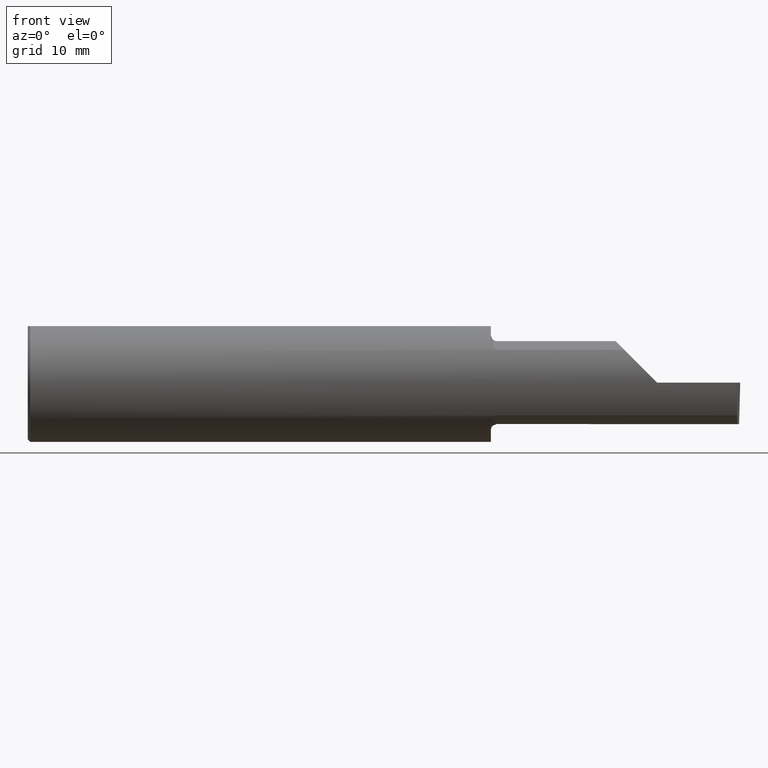
[diagram: clean part render]
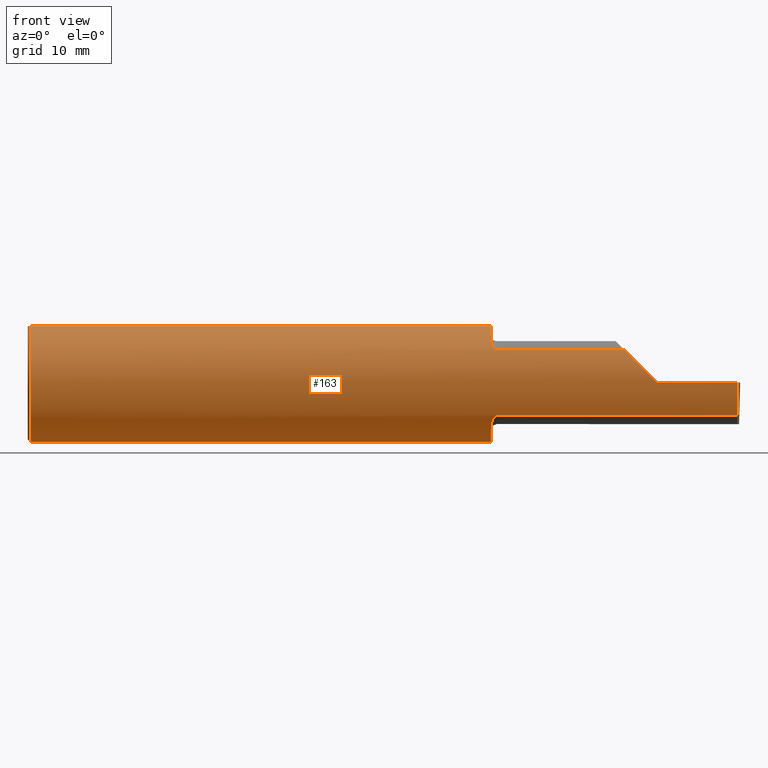
[diagram: same view with one face highlighted and labeled with its STEP entity id]
A machine part, front view. The second image highlights one B-rep face of the part: STEP entity #163.
In plain terms, the highlighted cylindrical surface (partial cylindrical patch) has radius 6.3462 mm, axis along (-1, -0, -0).
Its self-contained STEP definition (entity closure, byte-faithful):
#2 = AXIS2_PLACEMENT_3D ( 'NONE', #204, #495, #440 ) ;
#10 = VERTEX_POINT ( 'NONE', #108 ) ;
#11 = CARTESIAN_POINT ( 'NONE',  ( 2.986241469175252128, -0.2498499999999999610, -0.04956584089959695932 ) ) ;
#16 = CARTESIAN_POINT ( 'NONE',  ( 4.499279347985562423E-32, -0.2498499999999999610, 3.673940397442054938E-16 ) ) ;
#23 = AXIS2_PLACEMENT_3D ( 'NONE', #649, #73, #124 ) ;
#25 = CARTESIAN_POINT ( 'NONE',  ( 0.009999999999999856226, 0.000000000000000000, 0.000000000000000000 ) ) ;
#32 = ORIENTED_EDGE ( 'NONE', *, *, #93, .T. ) ;
#36 = CARTESIAN_POINT ( 'NONE',  ( 1.968863362722770738, -0.2068301641248770362, -0.1401678546132360814 ) ) ;
#42 = CARTESIAN_POINT ( 'NONE',  ( 1.975000000000000089, -0.2080850024789289987, -0.1382955322609668025 ) ) ;
#44 = CARTESIAN_POINT ( 'NONE',  ( 1.973329956043142985, -0.2080850024798591713, 0.1382955322595674219 ) ) ;
#67 = CARTESIAN_POINT ( 'NONE',  ( 2.985913134503198840, -0.2355204011147991883, -0.09701513151466753526 ) ) ;
#69 = EDGE_LOOP ( 'NONE', ( #561, #32, #493, #78, #446, #285, #671, #596, #357, #621, #162, #461, #354 ) ) ;
#73 = DIRECTION ( 'NONE',  ( -1.000000000000000000, -0.000000000000000000, -0.000000000000000000 ) ) ;
#75 = VERTEX_POINT ( 'NONE', #173 ) ;
#78 = ORIENTED_EDGE ( 'NONE', *, *, #224, .T. ) ;
#80 = EDGE_CURVE ( 'NONE', #744, #127, #647, .T. ) ;
#81 = DIRECTION ( 'NONE',  ( 1.000000000000000000, 0.000000000000000000, 0.000000000000000000 ) ) ;
#92 = VERTEX_POINT ( 'NONE', #638 ) ;
#93 = EDGE_CURVE ( 'NONE', #276, #744, #630, .T. ) ;
#100 = VECTOR ( 'NONE', #521, 39.37007874015748143 ) ;
#108 = CARTESIAN_POINT ( 'NONE',  ( 1.950000000000000178, -0.1616050818046604609, 0.1905487340154979614 ) ) ;
#117 = CARTESIAN_POINT ( 'NONE',  ( 2.986150208451177512, -0.2080850024789290265, -0.1382955322609667193 ) ) ;
#124 = DIRECTION ( 'NONE',  ( 0.000000000000000000, 0.000000000000000000, 1.000000000000000000 ) ) ;
#127 = VERTEX_POINT ( 'NONE', #470 ) ;
#128 = LINE ( 'NONE', #580, #739 ) ;
#137 = EDGE_CURVE ( 'NONE', #75, #451, #128, .T. ) ;
#140 = CARTESIAN_POINT ( 'NONE',  ( 0.000000000000000000, 0.07650098038587520299, 0.2378499999999998671 ) ) ;
#154 = CARTESIAN_POINT ( 'NONE',  ( 1.964302603425052141, -0.2041009206016213551, -0.1441313430770038706 ) ) ;
#157 = VERTEX_POINT ( 'NONE', #584 ) ;
#158 = EDGE_CURVE ( 'NONE', #732, #344, #229, .T. ) ;
#161 = CARTESIAN_POINT ( 'NONE',  ( 1.968876997637614812, -0.2068363917296600629, 0.1401586554522229466 ) ) ;
#162 = ORIENTED_EDGE ( 'NONE', *, *, #741, .F. ) ;
#163 = ADVANCED_FACE ( 'NONE', ( #532 ), #467, .T. ) ;
#165 = CARTESIAN_POINT ( 'NONE',  ( 1.951849548162864378, -0.1805300287242674884, 0.1728462070311779786 ) ) ;
#168 = CARTESIAN_POINT ( 'NONE',  ( 1.958182335268384477, -0.1972192205116131414, 0.1535061413537209818 ) ) ;
#169 = VERTEX_POINT ( 'NONE', #291 ) ;
#173 = CARTESIAN_POINT ( 'NONE',  ( 0.009999999999999856226, -0.07650098038587520299, 0.2378499999999998671 ) ) ;
#177 = CARTESIAN_POINT ( 'NONE',  ( 2.987107171508847081, -0.2498499999999999888, 0.000000000000000000 ) ) ;
#181 = CIRCLE ( 'NONE', #2, 0.2498499999999999888 ) ;
#185 =( BOUNDED_CURVE ( )  B_SPLINE_CURVE ( 3, ( #260, #597, #724, #669 ),
 .UNSPECIFIED., .F., .T. ) 
 B_SPLINE_CURVE_WITH_KNOTS ( ( 4, 4 ),
 ( 4.712388980384689674, 5.298966915116345433 ),
 .UNSPECIFIED. ) 
 CURVE ( )  GEOMETRIC_REPRESENTATION_ITEM ( )  RATIONAL_B_SPLINE_CURVE ( ( 1.000000000000000000, 0.9715321379117540790, 0.9715321379117540790, 1.000000000000000000 ) ) 
 REPRESENTATION_ITEM ( '' )  );
#192 = EDGE_CURVE ( 'NONE', #276, #465, #303, .T. ) ;
#196 = CARTESIAN_POINT ( 'NONE',  ( 2.986150208451177512, -0.2080850024789290265, -0.1382955322609667193 ) ) ;
#204 = CARTESIAN_POINT ( 'NONE',  ( 1.950000000000000178, 0.000000000000000000, 0.000000000000000000 ) ) ;
#211 = CARTESIAN_POINT ( 'NONE',  ( 1.956147634408387459, -0.1932733126899460196, -0.1584637047788197417 ) ) ;
#212 = CARTESIAN_POINT ( 'NONE',  ( 1.962616400345755796, -0.2024684335577103256, 0.1464246884265637816 ) ) ;
#220 = CARTESIAN_POINT ( 'NONE',  ( 1.971718393013768500, -0.2077830475237241459, 0.1387513848711937059 ) ) ;
#224 = EDGE_CURVE ( 'NONE', #127, #344, #185, .T. ) ;
#228 = CARTESIAN_POINT ( 'NONE',  ( 0.009999999999999856226, 0.000000000000000000, 0.000000000000000000 ) ) ;
#229 = LINE ( 'NONE', #592, #654 ) ;
#231 = EDGE_CURVE ( 'NONE', #169, #92, #181, .T. ) ;
#232 = CARTESIAN_POINT ( 'NONE',  ( 2.361894750000000265, -0.2080850024789290820, -0.1382955322609667193 ) ) ;
#251 = DIRECTION ( 'NONE',  ( 0.000000000000000000, 0.000000000000000000, -1.000000000000000000 ) ) ;
#253 = EDGE_CURVE ( 'NONE', #75, #157, #545, .T. ) ;
#260 = CARTESIAN_POINT ( 'NONE',  ( 2.650000000000000355, -0.2498499999999999610, 4.286263797015729199E-17 ) ) ;
#262 = AXIS2_PLACEMENT_3D ( 'NONE', #275, #631, #743 ) ;
#263 = CARTESIAN_POINT ( 'NONE',  ( 1.967611663768900732, -0.2061921161193830954, -0.1411075319999376410 ) ) ;
#264 = CARTESIAN_POINT ( 'NONE',  ( 2.511704467739032332, -0.2080850024789293040, 0.1382955322609664139 ) ) ;
#274 = CIRCLE ( 'NONE', #413, 0.2498499999999999888 ) ;
#275 = CARTESIAN_POINT ( 'NONE',  ( 1.950000000000000178, 0.000000000000000000, 0.000000000000000000 ) ) ;
#276 = VERTEX_POINT ( 'NONE', #196 ) ;
#285 = ORIENTED_EDGE ( 'NONE', *, *, #330, .F. ) ;
#290 = VERTEX_POINT ( 'NONE', #326 ) ;
#291 = CARTESIAN_POINT ( 'NONE',  ( 1.950000000000000178, -0.1616050818046604609, -0.1905487340154979614 ) ) ;
#294 = DIRECTION ( 'NONE',  ( 1.000000000000000000, 4.274981070833214909E-17, 0.000000000000000000 ) ) ;
#303 = LINE ( 'NONE', #232, #692 ) ;
#308 = CARTESIAN_POINT ( 'NONE',  ( 1.975000000000000089, -0.2080850024789290820, 0.1382955322609667470 ) ) ;
#311 = CARTESIAN_POINT ( 'NONE',  ( 1.950000000000000400, -0.1665641037263010105, 0.1863429692936361126 ) ) ;
#325 = CARTESIAN_POINT ( 'NONE',  ( 1.975000000000000089, -0.2080850024789289987, -0.1382955322609668025 ) ) ;
#326 = CARTESIAN_POINT ( 'NONE',  ( 0.009999999999999856226, 0.07650098038587520299, 0.2378499999999998671 ) ) ;
#330 = EDGE_CURVE ( 'NONE', #10, #732, #712, .T. ) ;
#344 = VERTEX_POINT ( 'NONE', #264 ) ;
#354 = ORIENTED_EDGE ( 'NONE', *, *, #552, .F. ) ;
#357 = ORIENTED_EDGE ( 'NONE', *, *, #253, .T. ) ;
#371 = CARTESIAN_POINT ( 'NONE',  ( 1.962579853086619197, -0.2024300470081735470, -0.1464774911482684960 ) ) ;
#389 = EDGE_CURVE ( 'NONE', #451, #10, #583, .T. ) ;
#390 = CARTESIAN_POINT ( 'NONE',  ( 1.950000000000000178, -0.1616050818046604609, -0.1905487340154979614 ) ) ;
#410 = DIRECTION ( 'NONE',  ( 0.000000000000000000, 0.000000000000000000, -1.000000000000000000 ) ) ;
#413 = AXIS2_PLACEMENT_3D ( 'NONE', #228, #466, #410 ) ;
#414 = DIRECTION ( 'NONE',  ( -1.000000000000000000, -4.274981070833214909E-17, -0.000000000000000000 ) ) ;
#424 = DIRECTION ( 'NONE',  ( -1.000000000000000000, -0.000000000000000000, -0.000000000000000000 ) ) ;
#440 = DIRECTION ( 'NONE',  ( 0.000000000000000000, 1.000000000000000000, 0.000000000000000000 ) ) ;
#446 = ORIENTED_EDGE ( 'NONE', *, *, #158, .F. ) ;
#447 = CARTESIAN_POINT ( 'NONE',  ( 1.950000000000000844, -0.1716188362992556171, -0.1820560320165480195 ) ) ;
#451 = VERTEX_POINT ( 'NONE', #723 ) ;
#461 = ORIENTED_EDGE ( 'NONE', *, *, #231, .F. ) ;
#465 = VERTEX_POINT ( 'NONE', #42 ) ;
#466 = DIRECTION ( 'NONE',  ( 1.000000000000000000, 0.000000000000000000, 0.000000000000000000 ) ) ;
#467 = CYLINDRICAL_SURFACE ( 'NONE', #23, 0.2498499999999999888 ) ;
#470 = CARTESIAN_POINT ( 'NONE',  ( 2.650000000000000355, -0.2498499999999999610, 4.286263797015729199E-17 ) ) ;
#481 = LINE ( 'NONE', #140, #502 ) ;
#493 = ORIENTED_EDGE ( 'NONE', *, *, #80, .T. ) ;
#495 = DIRECTION ( 'NONE',  ( 1.000000000000000000, 4.274981070833214909E-17, 0.000000000000000000 ) ) ;
#502 = VECTOR ( 'NONE', #424, 39.37007874015748143 ) ;
#503 = CARTESIAN_POINT ( 'NONE',  ( 1.958176740666625504, -0.1972027065478073049, -0.1535263573771913637 ) ) ;
#514 = CARTESIAN_POINT ( 'NONE',  ( 1.956159563508734323, -0.1933019864360849827, 0.1584298865564831016 ) ) ;
#521 = DIRECTION ( 'NONE',  ( -1.000000000000000000, -0.000000000000000000, -0.000000000000000000 ) ) ;
#532 = FACE_OUTER_BOUND ( 'NONE', #69, .T. ) ;
#545 = CIRCLE ( 'NONE', #560, 0.2498499999999999888 ) ;
#546 = CARTESIAN_POINT ( 'NONE',  ( 1.950367168219774738, -0.1713400252854603845, 0.1819601557798505298 ) ) ;
#552 = EDGE_CURVE ( 'NONE', #465, #169, #632, .T. ) ;
#558 = CARTESIAN_POINT ( 'NONE',  ( 1.971700027347578876, -0.2077785947292768165, -0.1387580622202825575 ) ) ;
#560 = AXIS2_PLACEMENT_3D ( 'NONE', #25, #81, #251 ) ;
#561 = ORIENTED_EDGE ( 'NONE', *, *, #192, .F. ) ;
#569 = CARTESIAN_POINT ( 'NONE',  ( 1.964343523383978329, -0.2041337200786082773, 0.1440846171672512110 ) ) ;
#580 = CARTESIAN_POINT ( 'NONE',  ( 0.000000000000000000, -0.07650098038587520299, 0.2378499999999998671 ) ) ;
#583 = CIRCLE ( 'NONE', #262, 0.2498499999999999888 ) ;
#584 = CARTESIAN_POINT ( 'NONE',  ( 0.009999999999999856226, 0.000000000000000000, -0.2498499999999999888 ) ) ;
#592 = CARTESIAN_POINT ( 'NONE',  ( 2.361894750000000265, -0.2080850024789290820, 0.1382955322609667193 ) ) ;
#596 = ORIENTED_EDGE ( 'NONE', *, *, #137, .F. ) ;
#597 = CARTESIAN_POINT ( 'NONE',  ( 2.600434159100402987, -0.2498499999999999610, 0.04956584089959683442 ) ) ;
#602 = CARTESIAN_POINT ( 'NONE',  ( 1.950000000000000178, -0.1616050818046604609, 0.1905487340154979614 ) ) ;
#607 = CARTESIAN_POINT ( 'NONE',  ( 2.987107171508847081, -0.2498499999999999888, 0.000000000000000000 ) ) ;
#621 = ORIENTED_EDGE ( 'NONE', *, *, #680, .T. ) ;
#623 = CARTESIAN_POINT ( 'NONE',  ( 1.975000000000000089, -0.2080850024789290820, 0.1382955322609667470 ) ) ;
#630 =( BOUNDED_CURVE ( )  B_SPLINE_CURVE ( 3, ( #117, #67, #11, #177 ),
 .UNSPECIFIED., .F., .T. ) 
 B_SPLINE_CURVE_WITH_KNOTS ( ( 4, 4 ),
 ( 6.160376845738951168, 6.746954780470608704 ),
 .UNSPECIFIED. ) 
 CURVE ( )  GEOMETRIC_REPRESENTATION_ITEM ( )  RATIONAL_B_SPLINE_CURVE ( ( 1.000000000000000000, 0.9715321379117538569, 0.9715321379117538569, 1.000000000000000000 ) ) 
 REPRESENTATION_ITEM ( '' )  );
#631 = DIRECTION ( 'NONE',  ( 1.000000000000000000, 4.274981070833214909E-17, 0.000000000000000000 ) ) ;
#632 = B_SPLINE_CURVE_WITH_KNOTS ( 'NONE', 3,
 ( #325, #720, #558, #36, #263, #154, #371, #503, #211, #730, #447, #390 ),
 .UNSPECIFIED., .F., .F.,
 ( 4, 2, 2, 2, 2, 4 ),
 ( 1.964491429042083329E-07, 0.0001260981470478421624, 0.0002519998449527801449, 0.0005038032407626413106, 0.001007410032382363534, 0.002014623615621813184 ),
 .UNSPECIFIED. ) ;
#638 = CARTESIAN_POINT ( 'NONE',  ( 1.950000000000000178, 0.07650098038587520299, 0.2378499999999998671 ) ) ;
#647 = LINE ( 'NONE', #16, #100 ) ;
#649 = CARTESIAN_POINT ( 'NONE',  ( 0.000000000000000000, 0.000000000000000000, 0.000000000000000000 ) ) ;
#654 = VECTOR ( 'NONE', #294, 39.37007874015748143 ) ;
#669 = CARTESIAN_POINT ( 'NONE',  ( 2.511704467739032332, -0.2080850024789293040, 0.1382955322609664139 ) ) ;
#671 = ORIENTED_EDGE ( 'NONE', *, *, #389, .F. ) ;
#680 = EDGE_CURVE ( 'NONE', #157, #290, #274, .T. ) ;
#687 = CARTESIAN_POINT ( 'NONE',  ( 1.952968662030529323, -0.1849684355203378983, 0.1680843977756267538 ) ) ;
#689 = CARTESIAN_POINT ( 'NONE',  ( 1.967647060162628136, -0.2062109266231181848, 0.1410799729252291135 ) ) ;
#692 = VECTOR ( 'NONE', #414, 39.37007874015748143 ) ;
#695 = DIRECTION ( 'NONE',  ( 1.000000000000000000, 0.000000000000000000, 0.000000000000000000 ) ) ;
#712 = B_SPLINE_CURVE_WITH_KNOTS ( 'NONE', 3,
 ( #602, #311, #546, #165, #687, #514, #168, #212, #569, #689, #161, #220, #44, #623 ),
 .UNSPECIFIED., .F., .F.,
 ( 4, 2, 2, 2, 2, 2, 4 ),
 ( 0.0003834465838148167632, 0.0008781406165086613064, 0.001372834649202505850, 0.001867528681896350609, 0.002114875698243277868, 0.002238549206416748545, 0.002362222714590219222 ),
 .UNSPECIFIED. ) ;
#720 = CARTESIAN_POINT ( 'NONE',  ( 1.973318040126430084, -0.2080850024789291652, -0.1382955322609666915 ) ) ;
#723 = CARTESIAN_POINT ( 'NONE',  ( 1.950000000000000178, -0.07650098038587527238, 0.2378499999999998671 ) ) ;
#724 = CARTESIAN_POINT ( 'NONE',  ( 2.552984868485332459, -0.2355204011147992993, 0.09701513151466721607 ) ) ;
#730 = CARTESIAN_POINT ( 'NONE',  ( 1.951385488563269988, -0.1808287530430325862, -0.1728790649396286516 ) ) ;
#732 = VERTEX_POINT ( 'NONE', #308 ) ;
#739 = VECTOR ( 'NONE', #695, 39.37007874015748143 ) ;
#741 = EDGE_CURVE ( 'NONE', #92, #290, #481, .T. ) ;
#743 = DIRECTION ( 'NONE',  ( 0.000000000000000000, 1.000000000000000000, 0.000000000000000000 ) ) ;
#744 = VERTEX_POINT ( 'NONE', #607 ) ;